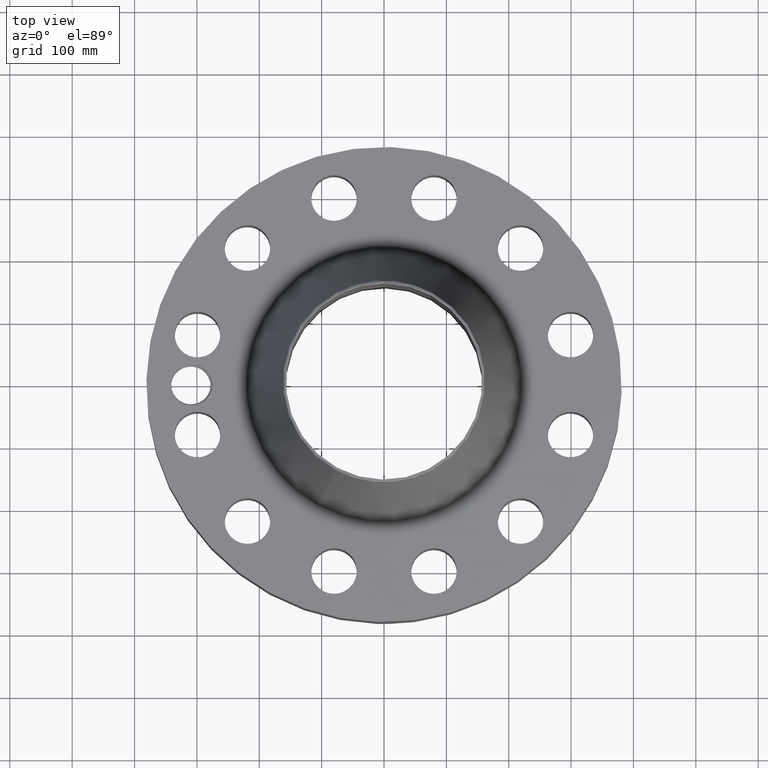
[diagram: clean part render]
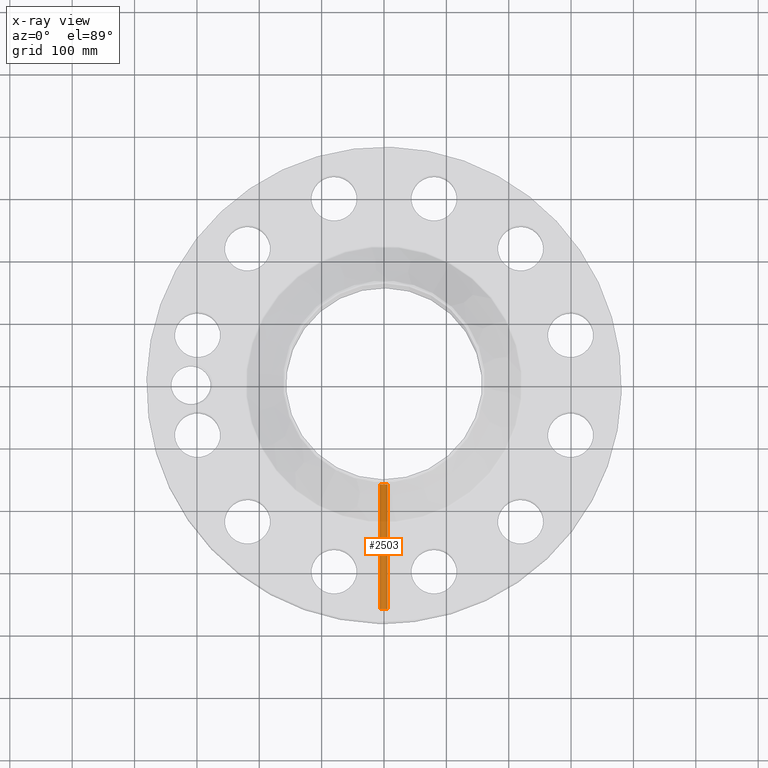
[diagram: x-ray — body ghosted, one internal face saturated and labeled with its STEP entity id]
A machine part, top view, then the same camera in x-ray: the body is ghosted and one INTERNAL B-rep face — a face not visible from any outside direction — is saturated and labeled: STEP entity #2503.
In plain terms, the highlighted cylindrical surface (edge-blend (fillet) strip) has radius 6.35 mm, axis along (0, 1, 0).
Its self-contained STEP definition (entity closure, byte-faithful):
#2464=AXIS2_PLACEMENT_3D('Cylinder Axis2P3D',#2461,#2462,#2463) ;
#2494=AXIS2_PLACEMENT_3D('Circle Axis2P3D',#2492,#2493,$) ;
#1308=CARTESIAN_POINT('Control Point',(0.219395640473,-6.19111383785,0.820143615352)) ;
#1309=CARTESIAN_POINT('Control Point',(0.20692161587,-6.19155588216,0.797310066475)) ;
#1310=CARTESIAN_POINT('Control Point',(0.191477706172,-6.19207171512,0.776100423205)) ;
#1311=CARTESIAN_POINT('Control Point',(0.173343784215,-6.1926214975,0.757028150568)) ;
#1312=CARTESIAN_POINT('Control Point',(0.112126846841,-6.19421184724,0.707544059521)) ;
#1313=CARTESIAN_POINT('Control Point',(0.0349650276166,-6.19524509444,0.68402248829)) ;
#1314=CARTESIAN_POINT('Control Point',(-0.0195781529893,-6.19532212491,0.682387715346)) ;
#1315=CARTESIAN_POINT('Control Point',(-0.124168818646,-6.19418431327,0.70753924102)) ;
#1316=CARTESIAN_POINT('Control Point',(-0.203216863894,-6.19183011143,0.780471433811)) ;
#1317=CARTESIAN_POINT('Control Point',(-0.232188082972,-6.19067155,0.826698187932)) ;
#1318=CARTESIAN_POINT('Control Point',(-0.255836835818,-6.18971843594,0.904849763434)) ;
#1319=CARTESIAN_POINT('Control Point',(-0.248289290856,-6.19002237021,0.984226520262)) ;
#1320=CARTESIAN_POINT('Control Point',(-0.24205535956,-6.19027707603,1.01079943955)) ;
#1321=CARTESIAN_POINT('Control Point',(-0.232319476876,-6.19065585348,1.0361994608)) ;
#1322=CARTESIAN_POINT('Control Point',(-0.219395640473,-6.19111383785,1.05985638466)) ;
#1323=CARTESIAN_POINT('Vertex',(0.219395640473,-6.19111383785,0.820143615352)) ;
#1325=CARTESIAN_POINT('Vertex',(-0.219395640473,-6.19111383785,1.05985638466)) ;
#2461=CARTESIAN_POINT('Axis2P3D Location',(5.59554790764E-015,-14.9960629922,0.940000000004)) ;
#2466=CARTESIAN_POINT('Line Origine',(0.219395640473,-10.1325058266,0.820143615352)) ;
#2470=CARTESIAN_POINT('Vertex',(0.219395640473,-14.0753854047,0.820143615352)) ;
#2477=CARTESIAN_POINT('Vertex',(-0.219395640473,-14.0753854047,1.05985638466)) ;
#2480=CARTESIAN_POINT('Line Origine',(-0.219395640473,-10.1325058266,1.05985638466)) ;
#2492=CARTESIAN_POINT('Axis2P3D Location',(5.76467363673E-015,-14.0753854047,0.940000000004)) ;
#2462=DIRECTION('Axis2P3D Direction',(7.2321661367E-018,0.0393700787402,0.)) ;
#2463=DIRECTION('Axis2P3D XDirection',(0.0345504945626,-6.34682288626E-018,-0.0188750212049)) ;
#2467=DIRECTION('Vector Direction',(7.15769405853E-018,0.0393700787402,0.)) ;
#2481=DIRECTION('Vector Direction',(7.15769405853E-018,0.0393700787402,0.)) ;
#2493=DIRECTION('Axis2P3D Direction',(7.2321661367E-018,0.0393700787402,0.)) ;
#2468=VECTOR('Line Direction',#2467,0.0393700787402) ;
#2482=VECTOR('Line Direction',#2481,0.0393700787402) ;
#2498=ORIENTED_EDGE('',*,*,#1327,.T.) ;
#2499=ORIENTED_EDGE('',*,*,#2484,.T.) ;
#2500=ORIENTED_EDGE('',*,*,#2496,.F.) ;
#2501=ORIENTED_EDGE('',*,*,#2472,.F.) ;
#2503=ADVANCED_FACE('PartBody',(#2502),#2465,.F.) ;
#1307=B_SPLINE_CURVE_WITH_KNOTS('',5,(#1308,#1309,#1310,#1311,#1312,#1313,#1314,#1315,#1316,#1317,#1318,#1319,#1320,#1321,#1322),.UNSPECIFIED.,.F.,.U.,(6,3,3,3,6),(0.,4.67376443214,14.0224894058,23.3725006781,28.2148004832),.UNSPECIFIED.) ;
#2495=CIRCLE('generated circle',#2494,0.250000000001) ;
#2465=CYLINDRICAL_SURFACE('generated cylinder',#2464,0.250000000001) ;
#1327=EDGE_CURVE('',#1324,#1326,#1307,.T.) ;
#2472=EDGE_CURVE('',#1324,#2471,#2469,.F.) ;
#2484=EDGE_CURVE('',#1326,#2478,#2483,.F.) ;
#2496=EDGE_CURVE('',#2471,#2478,#2495,.T.) ;
#2497=EDGE_LOOP('',(#2498,#2499,#2500,#2501)) ;
#2502=FACE_OUTER_BOUND('',#2497,.T.) ;
#2469=LINE('Line',#2466,#2468) ;
#2483=LINE('Line',#2480,#2482) ;
#1324=VERTEX_POINT('',#1323) ;
#1326=VERTEX_POINT('',#1325) ;
#2471=VERTEX_POINT('',#2470) ;
#2478=VERTEX_POINT('',#2477) ;